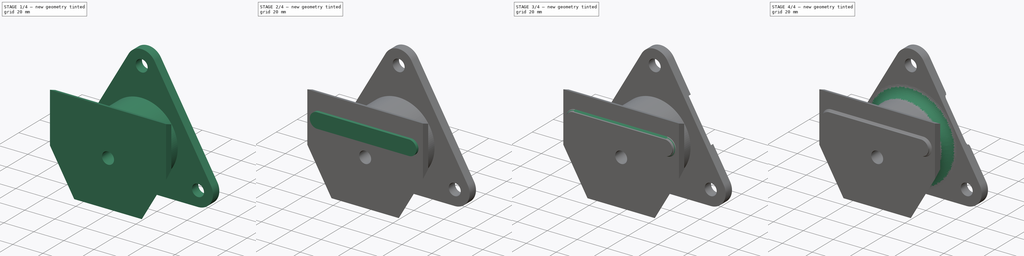
[diagram: build sequence overview — one tinted view per stage of 4, left to right]
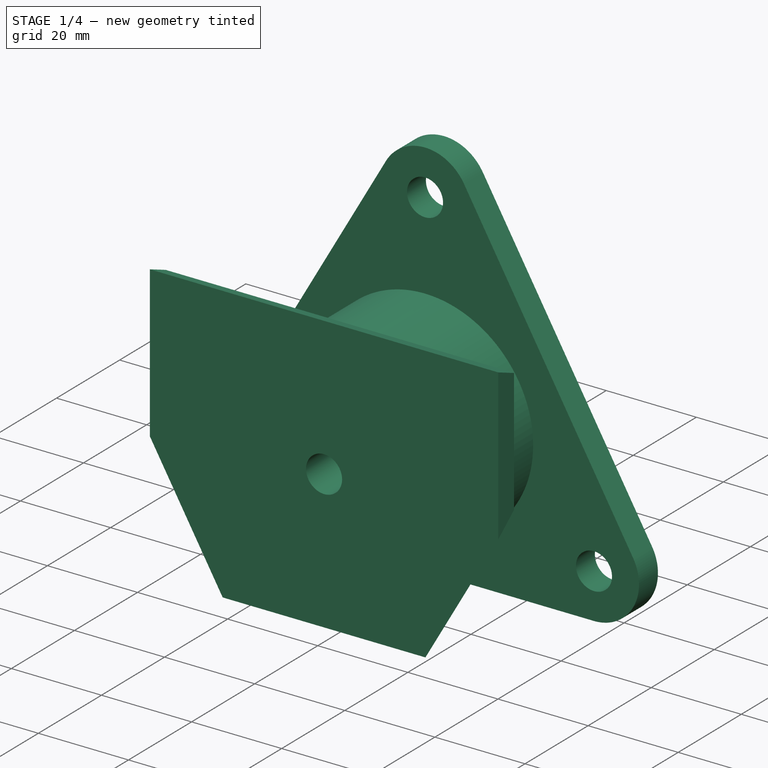
[diagram: stage 1 of 4 — iso view after this stage's code; geometry added in this stage tinted green]
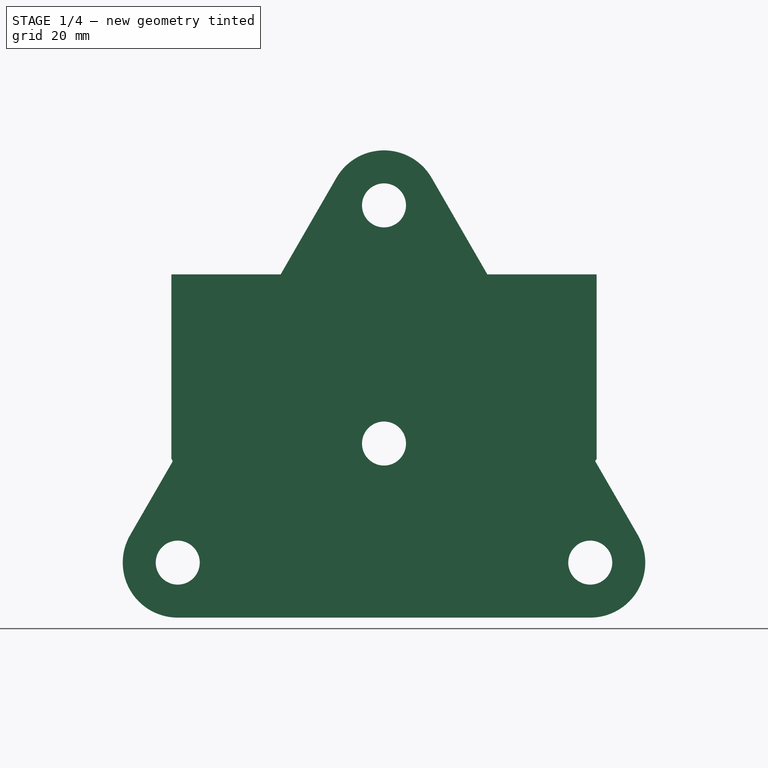
[diagram: stage 1 of 4 — front view after this stage's code; geometry added in this stage tinted green]
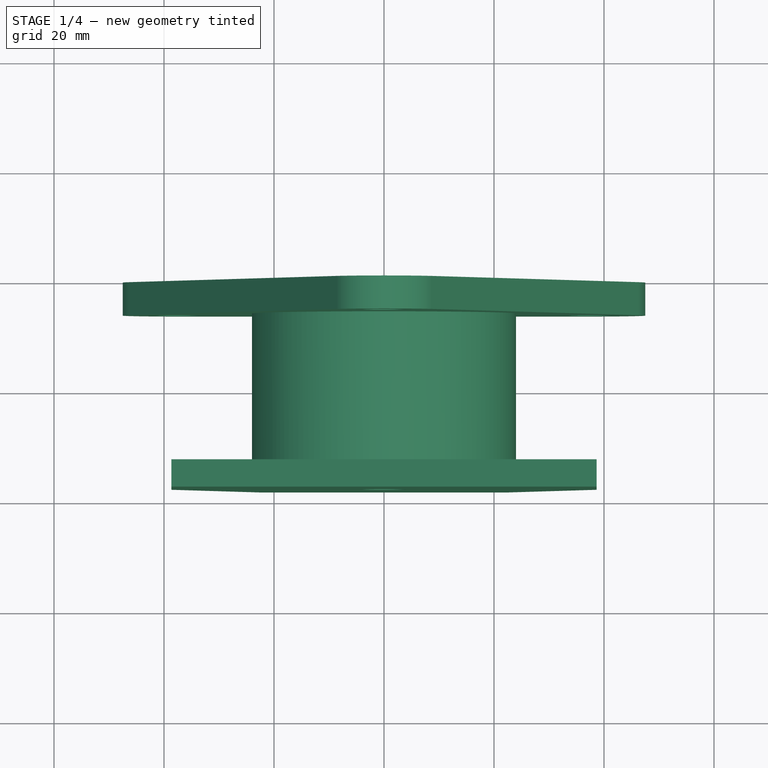
[diagram: stage 1 of 4 — top view after this stage's code; geometry added in this stage tinted green]
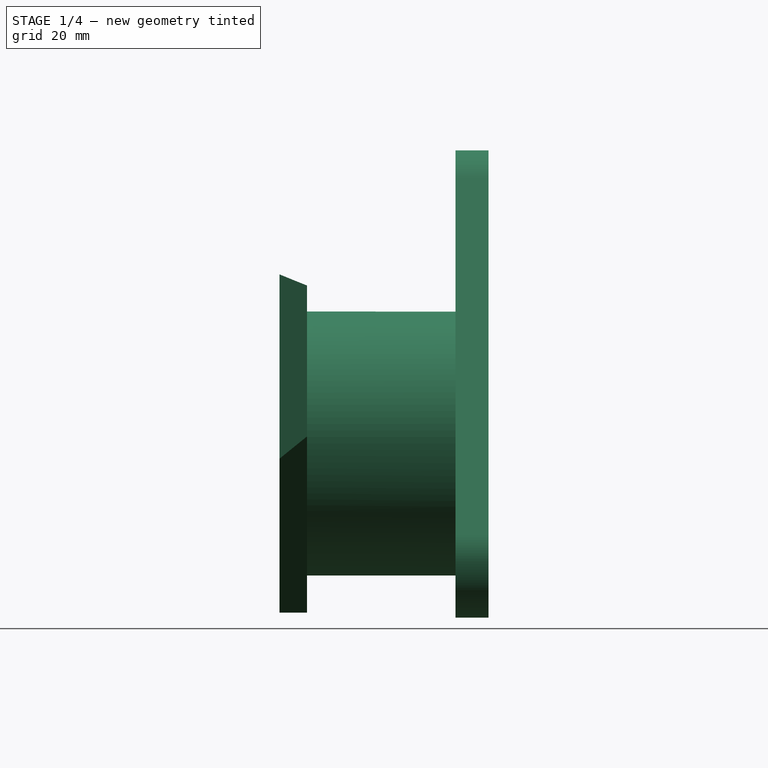
[diagram: stage 1 of 4 — right view after this stage's code; geometry added in this stage tinted green]
FCSTD DOCUMENT  (FreeCAD 0.18R16117 (Git))
Label: assy
License: All rights reserved
LicenseURL: http://en.wikipedia.org/wiki/All_rights_reserved
objects: App::FeaturePython×10, Part::FeaturePython×3, Sketcher::SketchObject×3, Part::Fillet×3, Part::Fuse×2, PartDesign::ShapeBinder×2, PartDesign::Pad×2, PartDesign::Body×2, Part::Chamfer×2, PartDesign::FeatureBase×1, Part::Cut×1
note: 23 computed .brp shape members not serialized (recipe doc carries the construction recipe); baked Part::Feature solids carry a one-line shape summary decoded from their .brp

FEATURE [Part::FeaturePython] b_90cm_dish_mount_adapter_001_  label="90cm_dish_mount_adapter_001"  # a2plus imported part (geometry in sourceFile) (typed FeaturePython)
  a2p_Version = V0.1
  fixedPosition = true
  sourceFile = ./90cm_dish_mount_adapter.FCStd
  subassemblyImport = false
  timeLastImport = 1.56511e+09
  updateColors = true
FEATURE [Part::FeaturePython] b_connecting_cylinder_001_  label="connecting_cylinder_001"  # a2plus imported part (geometry in sourceFile) (typed FeaturePython)
  Placement = pos=(-9.50587e-09,-34,4.88765e-07) rot=(-1,0.000125,0.000125;1.5708rad)
  a2p_Version = V0.1
  fixedPosition = false
  sourceFile = ./connecting_cylinder.FCStd
  subassemblyImport = false
  timeLastImport = 1.56511e+09
  updateColors = true
FEATURE [Part::FeaturePython] b_manfrotto_adapter_plate_001_  label="manfrotto_adapter_plate_001"  # a2plus imported part (geometry in sourceFile) (typed FeaturePython)
  Placement = pos=(-1.3692e-07,-38,30.75) rot=(-1,0,0;1.5708rad)
  a2p_Version = V0.1
  fixedPosition = false
  sourceFile = ./manfrotto_adapter_plate.FCStd
  subassemblyImport = false
  timeLastImport = 1.56511e+09
  updateColors = true
FEATURE [App::FeaturePython] axisParallel_001  label="axisParallel_001__manfrotto_adapter_plate_001"  # a2plus constraint (typed FeaturePython)
  Object1 = b_90cm_dish_mount_adapter_001_
  Object2 = b_manfrotto_adapter_plate_001_
  ParentTreeObject = -> b_90cm_dish_mount_adapter_001_
  SubElement1 = Edge16
  SubElement2 = Edge3
  Type = axisParallel
  directionConstraint = 0
FEATURE [App::FeaturePython] axisParallel_001_mirror  label="axisParallel_001__90cm_dish_mount_adapter_001"  # a2plus constraint (typed FeaturePython)
  Object1 = b_90cm_dish_mount_adapter_001_
  Object2 = b_manfrotto_adapter_plate_001_
  ParentTreeObject = -> b_manfrotto_adapter_plate_001_
  SubElement1 = Edge16
  SubElement2 = Edge3
  Type = axisParallel
  directionConstraint = 0
FEATURE [App::FeaturePython] axisCoincident_001  label="axisCoincident_001__90cm_dish_mount_adapter_001"  # a2plus constraint (typed FeaturePython)
  Object1 = b_connecting_cylinder_001_
  Object2 = b_90cm_dish_mount_adapter_001_
  ParentTreeObject = -> b_connecting_cylinder_001_
  SubElement1 = Face2
  SubElement2 = Face7
  Type = axial
  directionConstraint = 1
  lockRotation = false
FEATURE [App::FeaturePython] axisCoincident_001_mirror  label="axisCoincident_001__connecting_cylinder_001"  # a2plus constraint (typed FeaturePython)
  Object1 = b_connecting_cylinder_001_
  Object2 = b_90cm_dish_mount_adapter_001_
  ParentTreeObject = -> b_90cm_dish_mount_adapter_001_
  SubElement1 = Face2
  SubElement2 = Face7
  Type = axial
  directionConstraint = 1
  lockRotation = false
FEATURE [App::FeaturePython] circularEdge_002  label="circularEdge_002__connecting_cylinder_001"  # a2plus constraint (typed FeaturePython)
  Object1 = b_90cm_dish_mount_adapter_001_
  Object2 = b_connecting_cylinder_001_
  ParentTreeObject = -> b_90cm_dish_mount_adapter_001_
  SubElement1 = Edge20
  SubElement2 = Edge6
  Type = circularEdge
  directionConstraint = 1
  lockRotation = false
  offset = -4
FEATURE [App::FeaturePython] circularEdge_002_mirror  label="circularEdge_002__90cm_dish_mount_adapter_001"  # a2plus constraint (typed FeaturePython)
  Object1 = b_90cm_dish_mount_adapter_001_
  Object2 = b_connecting_cylinder_001_
  ParentTreeObject = -> b_connecting_cylinder_001_
  SubElement1 = Edge20
  SubElement2 = Edge6
  Type = circularEdge
  directionConstraint = 1
  lockRotation = false
  offset = -4
FEATURE [App::FeaturePython] planesParallel_001  label="planesParallel_001__manfrotto_adapter_plate_001"  # a2plus constraint (typed FeaturePython)
  Object1 = b_connecting_cylinder_001_
  Object2 = b_manfrotto_adapter_plate_001_
  ParentTreeObject = -> b_connecting_cylinder_001_
  SubElement1 = Face3
  SubElement2 = Face5
  Type = planesParallel
  directionConstraint = 1
FEATURE [App::FeaturePython] planesParallel_001_mirror  label="planesParallel_001__connecting_cylinder_001"  # a2plus constraint (typed FeaturePython)
  Object1 = b_connecting_cylinder_001_
  Object2 = b_manfrotto_adapter_plate_001_
  ParentTreeObject = -> b_manfrotto_adapter_plate_001_
  SubElement1 = Face3
  SubElement2 = Face5
  Type = planesParallel
  directionConstraint = 1
FEATURE [App::FeaturePython] circularEdge_001  label="circularEdge_001__connecting_cylinder_001"  # a2plus constraint (typed FeaturePython)
  Object1 = b_manfrotto_adapter_plate_001_
  Object2 = b_connecting_cylinder_001_
  ParentTreeObject = -> b_connecting_cylinder_001_
  SubElement1 = Edge18
  SubElement2 = Edge5
  Type = circularEdge
  directionConstraint = 0
  lockRotation = false
  offset = 1
FEATURE [App::FeaturePython] circularEdge_001_mirror  label="circularEdge_001__manfrotto_adapter_plate_001"  # a2plus constraint (typed FeaturePython)
  Object1 = b_manfrotto_adapter_plate_001_
  Object2 = b_connecting_cylinder_001_
  ParentTreeObject = -> b_connecting_cylinder_001_
  SubElement1 = Edge18
  SubElement2 = Edge5
  Type = circularEdge
  directionConstraint = 0
  lockRotation = false
  offset = 1
FEATURE [Part::Fuse] Fusion
  Base = -> b_connecting_cylinder_001_
  Tool = -> b_manfrotto_adapter_plate_001_
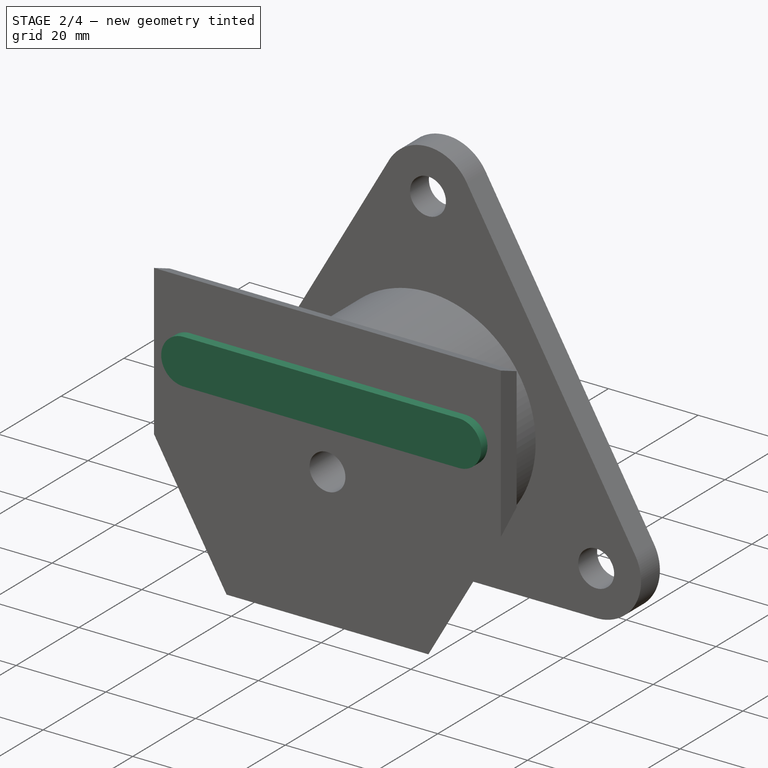
[diagram: stage 2 of 4 — iso view after this stage's code; geometry added in this stage tinted green]
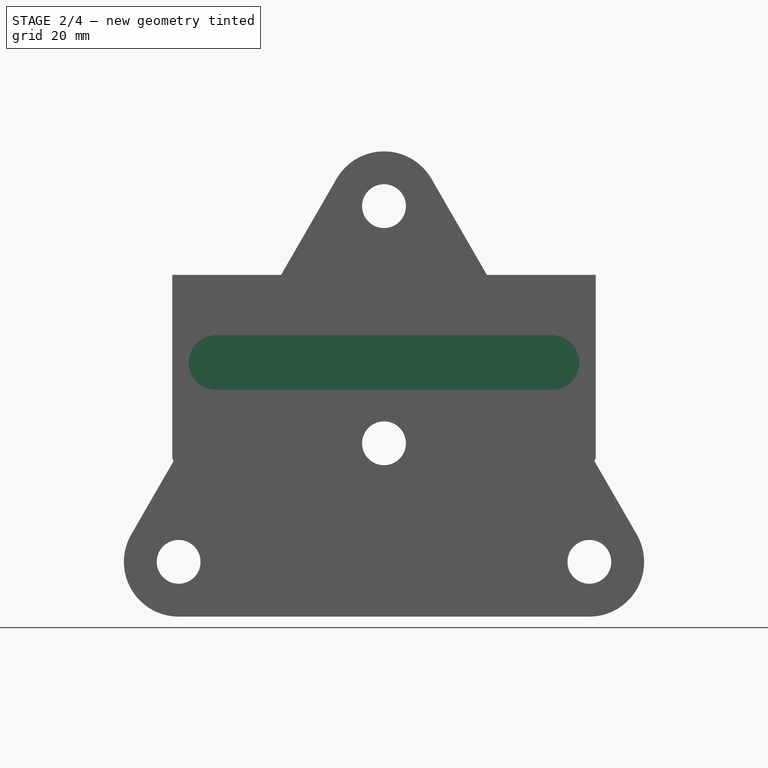
[diagram: stage 2 of 4 — front view after this stage's code; geometry added in this stage tinted green]
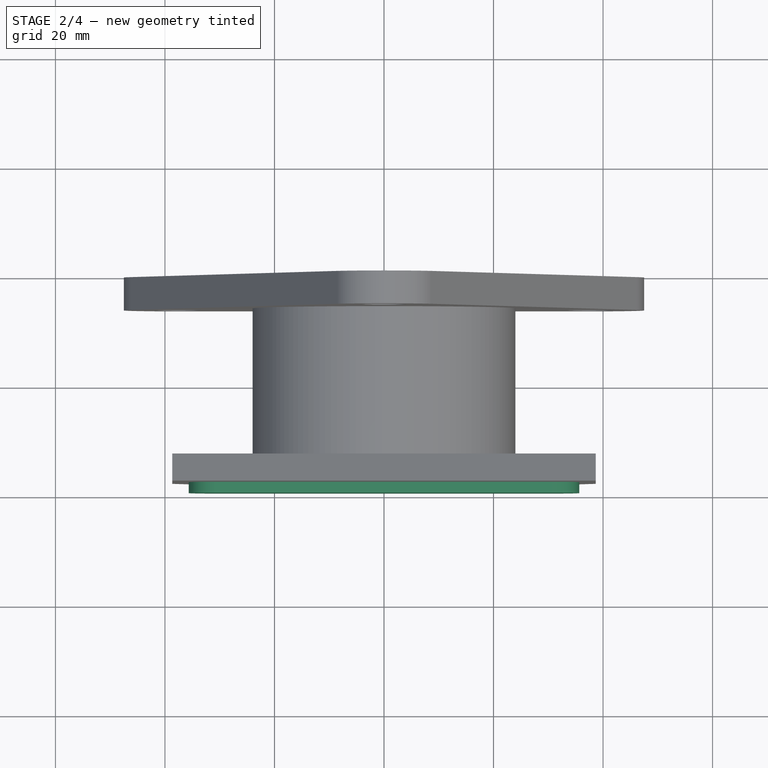
[diagram: stage 2 of 4 — top view after this stage's code; geometry added in this stage tinted green]
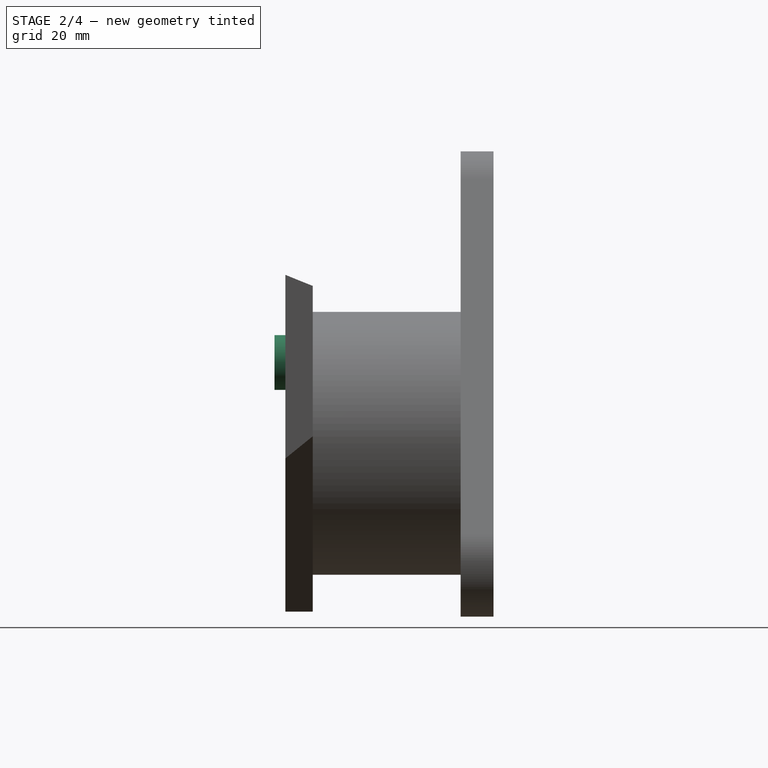
[diagram: stage 2 of 4 — right view after this stage's code; geometry added in this stage tinted green]
FEATURE [Part::Fuse] Fusion001
  Base = -> b_90cm_dish_mount_adapter_001_
  Tool = -> Fusion
FEATURE [PartDesign::ShapeBinder] CopyFusion001
  Placement = pos=(-1.3692e-07,-38,30.75) rot=(-1,0,0;1.5708rad)
  TraceSupport = false
FEATURE [Sketcher::SketchObject] Sketch001
  MapMode = 5
  Placement = pos=(-1.3692e-07,-38,30.75) rot=(1,0,0;1.5708rad)
  Support = -> [CopyFusion001]
  sketch-geometry (1):
    g0: Circle CenterX=-25.2151 CenterY=-13.846 CenterZ=0 NormalX=0 NormalY=0 NormalZ=1 AngleXU=0 Radius=9.47213
FEATURE [PartDesign::Body] Body
  Group = -> [ReferenceFillet001,Sketch,Pad,CopyFusion001,Sketch001]
  Origin = -> Origin
  Tip = -> Pad
FEATURE [PartDesign::FeatureBase] BaseFeature
  BaseFeature = -> Fusion001
FEATURE [Sketcher::SketchObject] CopySketch001
  ExternalGeometry = -> [BaseFeature]
  Placement = pos=(-1.3692e-07,-38,30.75) rot=(1,0,0;1.5708rad)
  expr: Constraints[8] = CopySketch001.Constraints.foot_thickness / 2 + 3mm
  expr: Constraints[7] = CopySketch001.Constraints.foot_thickness / 2 + 3mm
  sketch-geometry (4):
    g0: ArcOfCircle CenterX=-30.6658 CenterY=-16 CenterZ=0 NormalX=0 NormalY=0 NormalZ=1 AngleXU=0 Radius=5 StartAngle=1.5708 EndAngle=4.71239
    g1: ArcOfCircle CenterX=30.6658 CenterY=-16 CenterZ=0 NormalX=0 NormalY=0 NormalZ=1 AngleXU=0 Radius=5 StartAngle=4.71239 EndAngle=7.85398
    g2: LineSegment StartX=-30.6658 StartY=-21 StartZ=0 EndX=30.6658 EndY=-21 EndZ=0
    g3: LineSegment StartX=-30.6658 StartY=-11 StartZ=0 EndX=30.6658 EndY=-11 EndZ=0
  constraints (10):
    c: Tangent(g0,g3) = 1.5708
    c: Tangent(g0,g2) = -1.5708
    c: Tangent(g2,g1) = -1.5708
    c: Tangent(g3,g1) = 1.5708
    c: Horizontal(g2)
    c: Equal(g0,g1)
    c: DistanceY(g1,g1) = 10  'foot_thickness'
    c: DistanceX(g1,g-4) = 8
    c: DistanceX(g-5,g0) = 8
    c: DistanceY(g1,g-1) = 11
FEATURE [PartDesign::Pad] Pad001
  BaseFeature = -> BaseFeature
  Length = 2
  Length2 = 100
  Profile = -> CopySketch001
  Type = 0
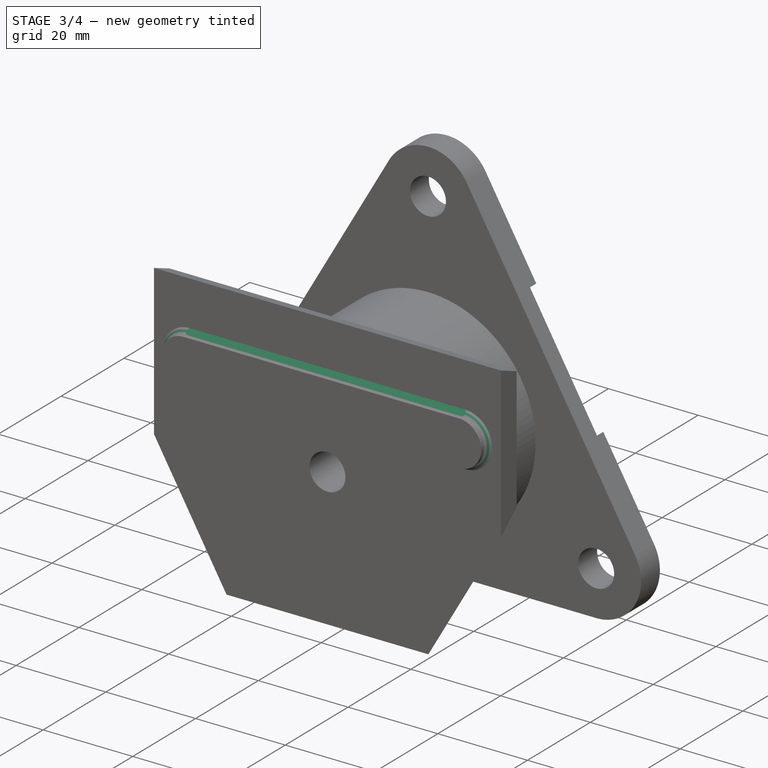
[diagram: stage 3 of 4 — iso view after this stage's code; geometry added in this stage tinted green]
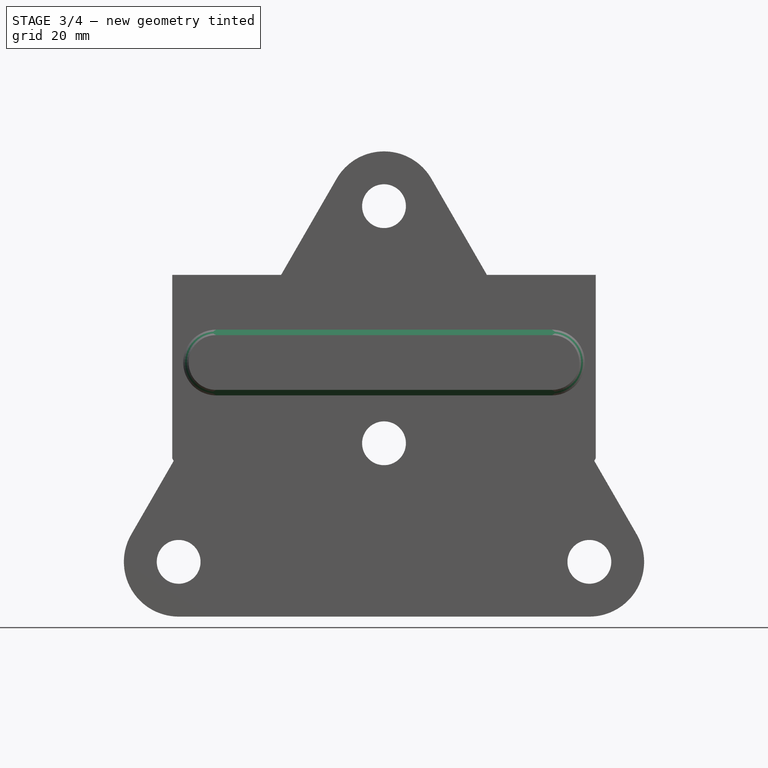
[diagram: stage 3 of 4 — front view after this stage's code; geometry added in this stage tinted green]
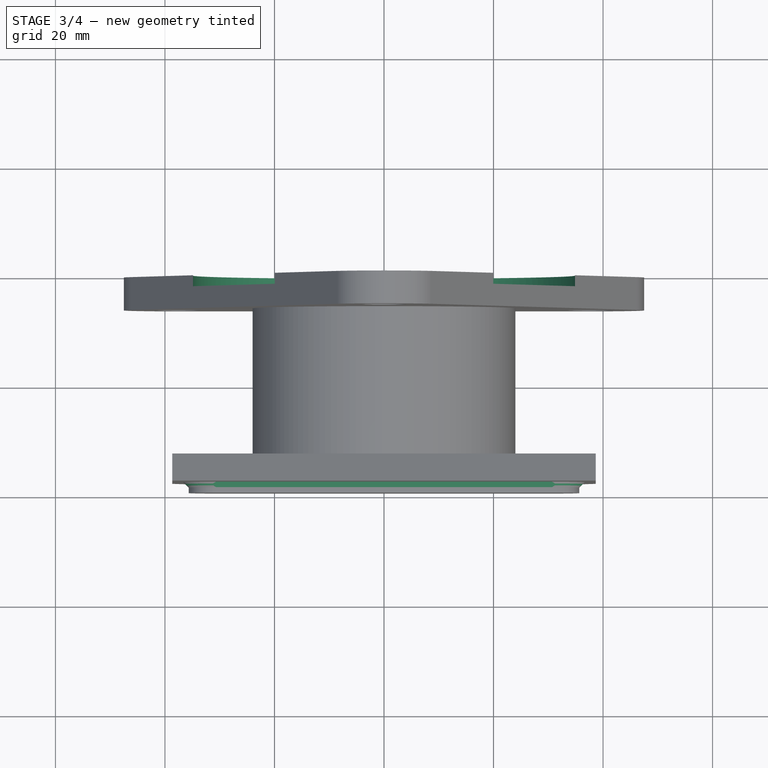
[diagram: stage 3 of 4 — top view after this stage's code; geometry added in this stage tinted green]
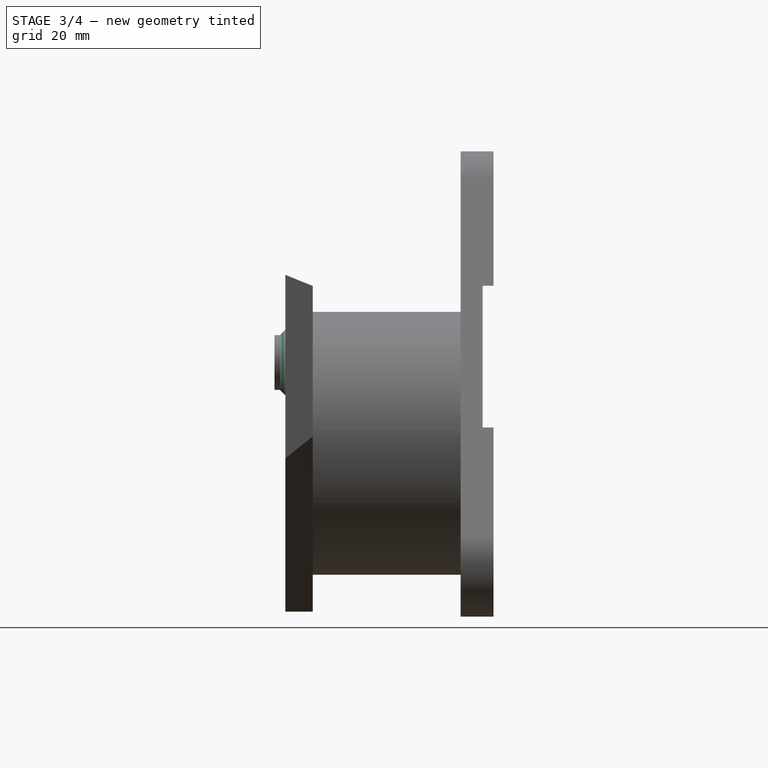
[diagram: stage 3 of 4 — right view after this stage's code; geometry added in this stage tinted green]
FEATURE [PartDesign::ShapeBinder] ReferenceFillet001
  Placement = pos=(0,0,0) rot=(-1,0,0;1.5708rad)
  TraceSupport = false
FEATURE [Sketcher::SketchObject] Sketch
  MapMode = 5
  Placement = pos=(0,0,0) rot=(-1,0,0;1.5708rad)
  Support = -> [ReferenceFillet001]
  sketch-geometry (1):
    g0: Circle CenterX=0 CenterY=0 CenterZ=0 NormalX=0 NormalY=0 NormalZ=1 AngleXU=0 Radius=35
  constraints (2):
    c: Coincident(g0,g-1)
    c: Radius(g0) = 35
FEATURE [PartDesign::Pad] Pad
  Length = 2
  Length2 = 100
  Placement = pos=(0,0,0) rot=(-1,0,0;1.5708rad)
  Profile = -> Sketch
  Reversed = true
  Type = 0
FEATURE [PartDesign::Body] Body001
  BaseFeature = -> Fusion001
  Group = -> [BaseFeature,CopySketch001,Pad001]
  Origin = -> Origin001
  Tip = -> Pad001
FEATURE [Part::Cut] Cut
  Base = -> Pad001
  Tool = -> Pad
FEATURE [Part::Chamfer] Chamfer
  Base = -> Cut
  Edges = 4 edges r=1: [Edge86,Edge87,Edge88,Edge89]
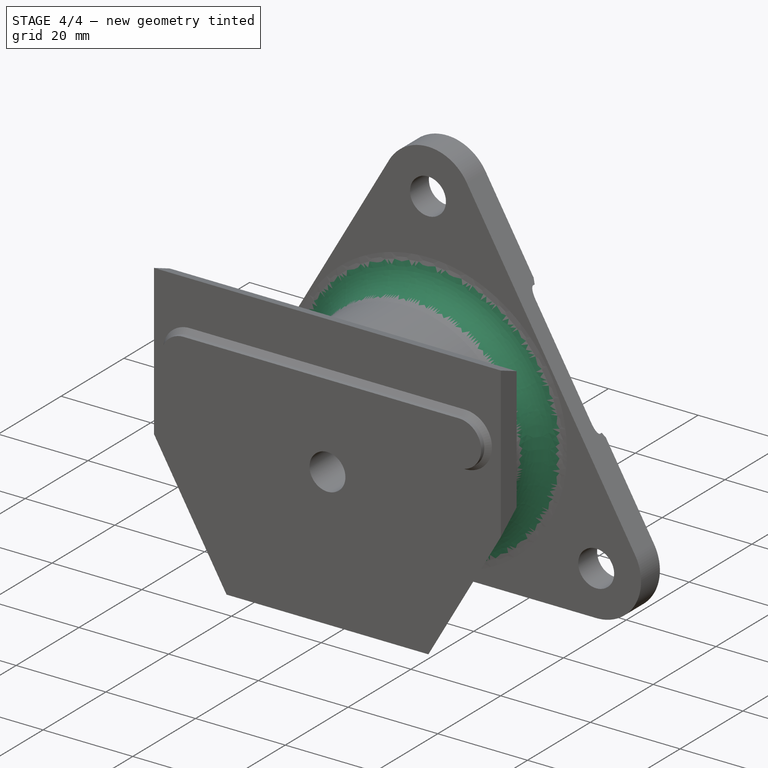
[diagram: stage 4 of 4 — iso view after this stage's code; geometry added in this stage tinted green]
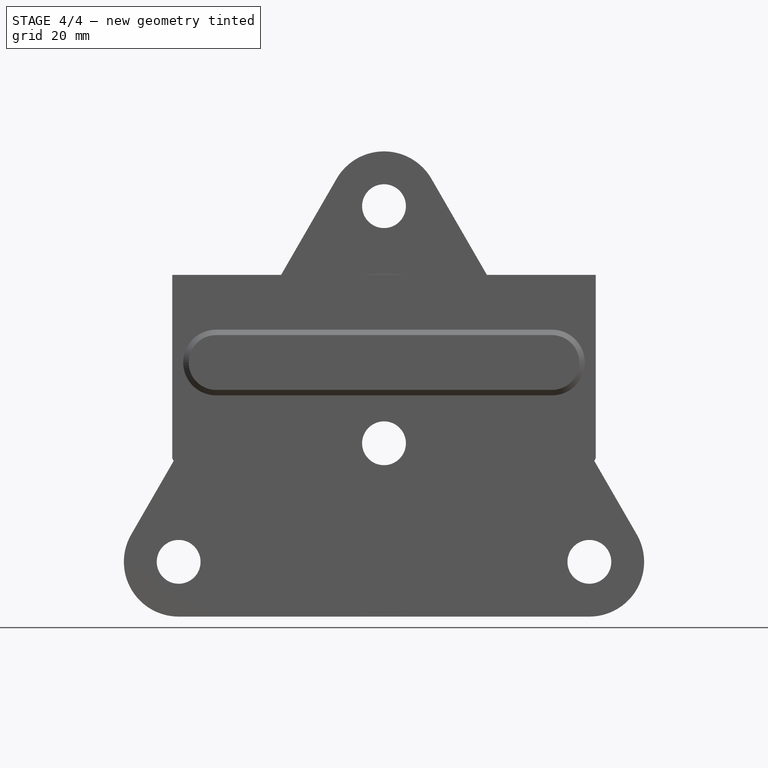
[diagram: stage 4 of 4 — front view after this stage's code; geometry added in this stage tinted green]
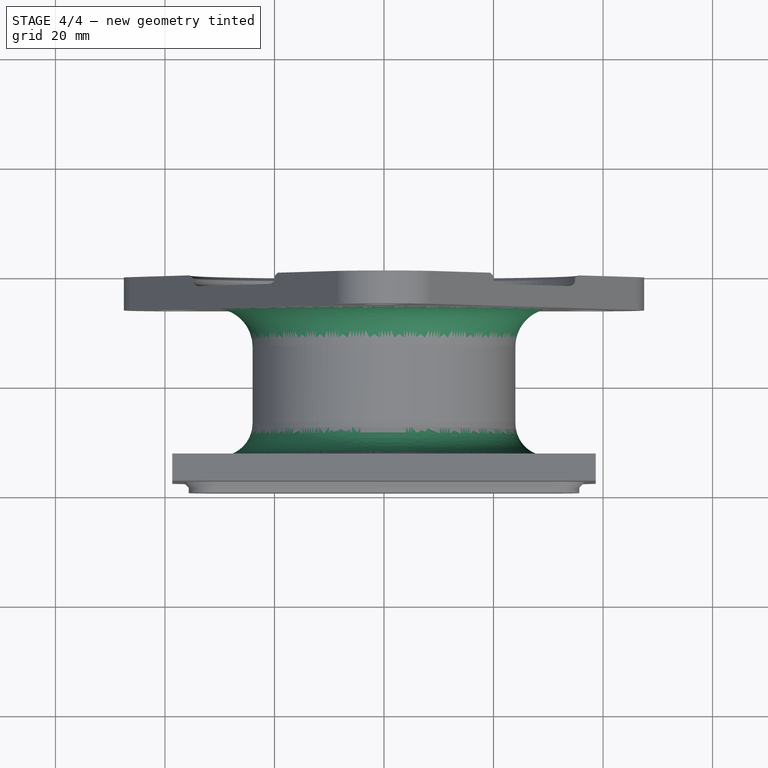
[diagram: stage 4 of 4 — top view after this stage's code; geometry added in this stage tinted green]
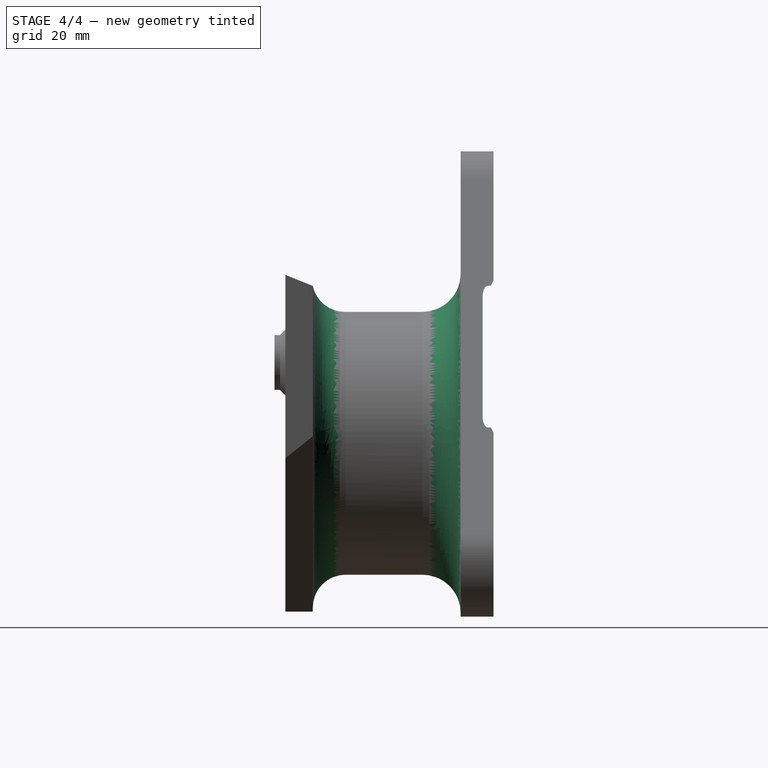
[diagram: stage 4 of 4 — right view after this stage's code; geometry added in this stage tinted green]
FEATURE [Part::Fillet] Fillet
  Base = -> Chamfer
  Edges = 4 edges r=1: [Edge101,Edge102,Edge103,Edge104]
FEATURE [Part::Chamfer] Chamfer001
  Base = -> Fillet
  Edges = 4 edges r=0.5: [Edge13,Edge18,Edge38,Edge66]
FEATURE [Part::Fillet] Fillet001
  Base = -> Chamfer001
  Edges = 1 edges r=7: [Edge39]
FEATURE [Part::Fillet] Fillet002
  Base = -> Fillet001
  Edges = 1 edges r=6: [Edge56]
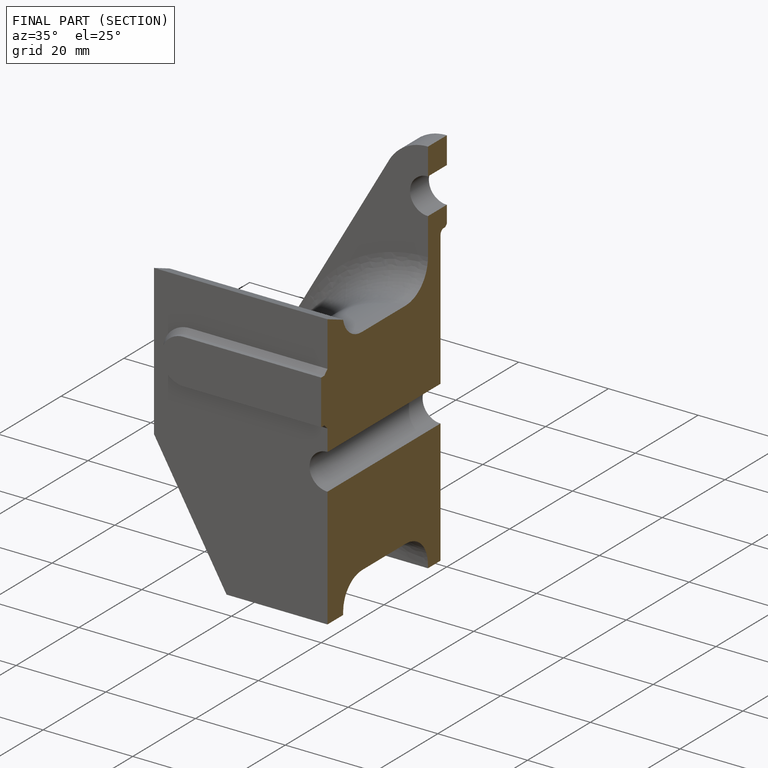
[diagram: finished part — half-section view (interior)]
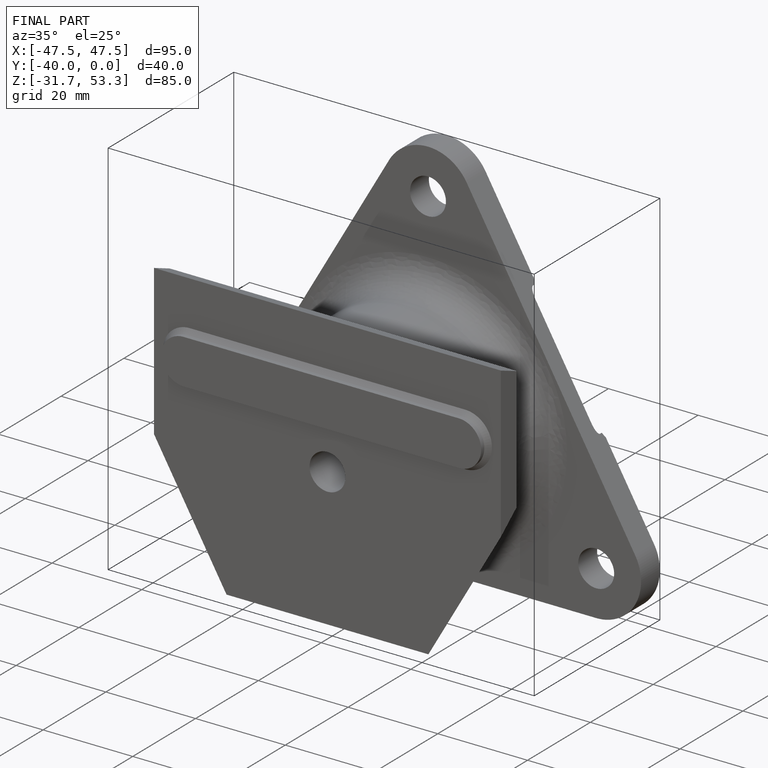
[diagram: finished part — iso view with bounding-box wireframe]
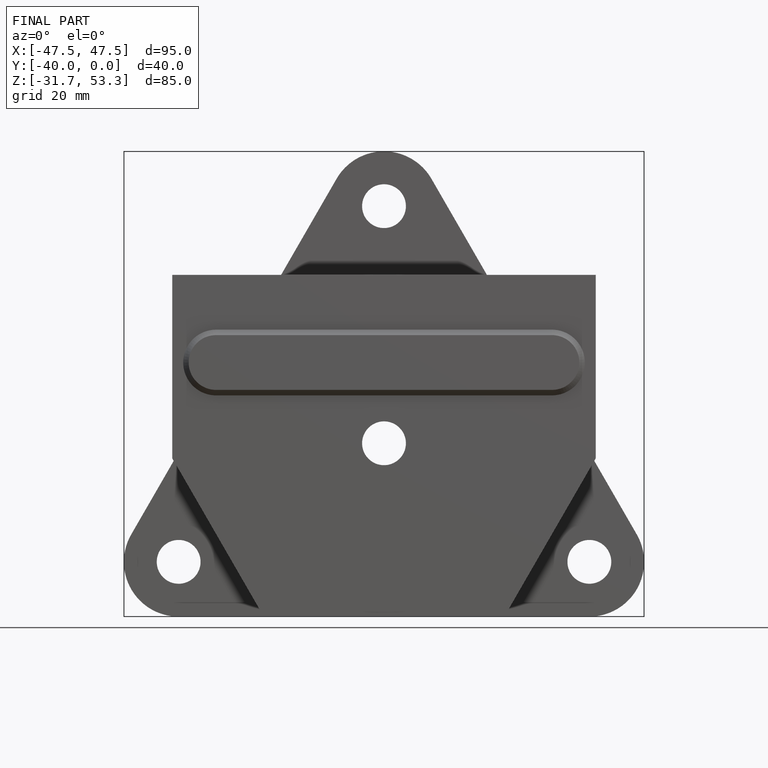
[diagram: finished part — front view with bounding-box wireframe]
